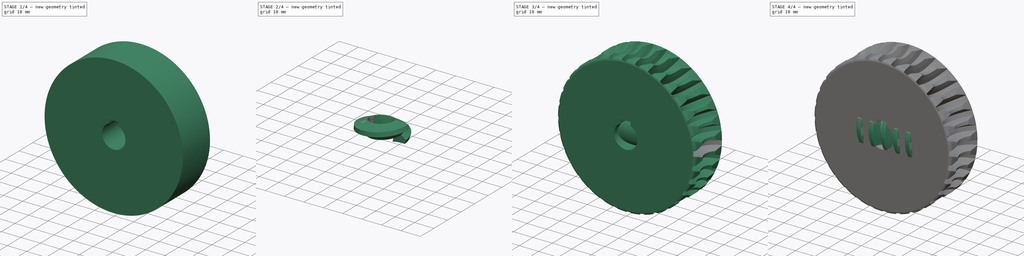
[diagram: build sequence overview — one tinted view per stage of 4, left to right]
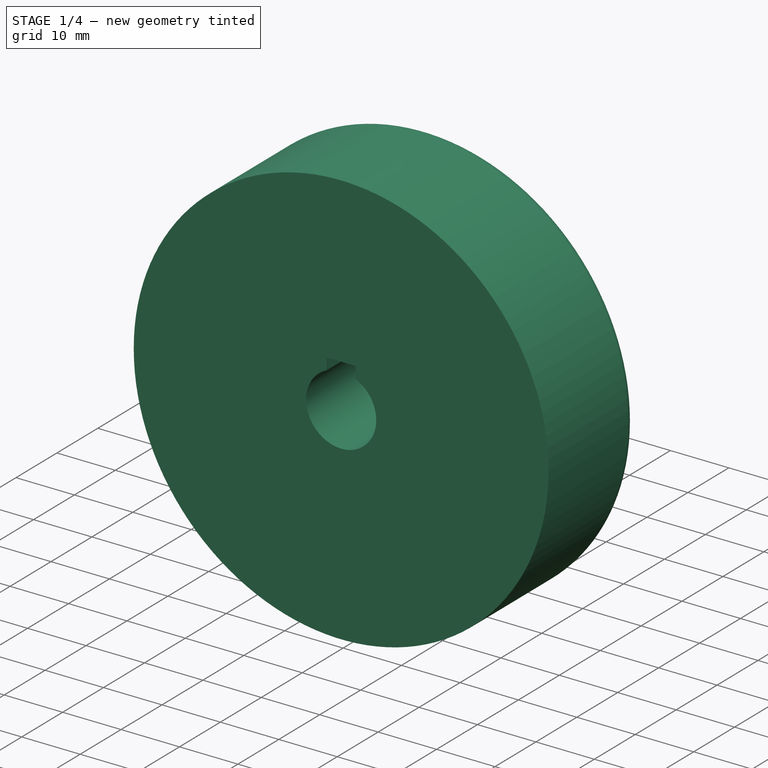
[diagram: stage 1 of 4 — iso view after this stage's code; geometry added in this stage tinted green]
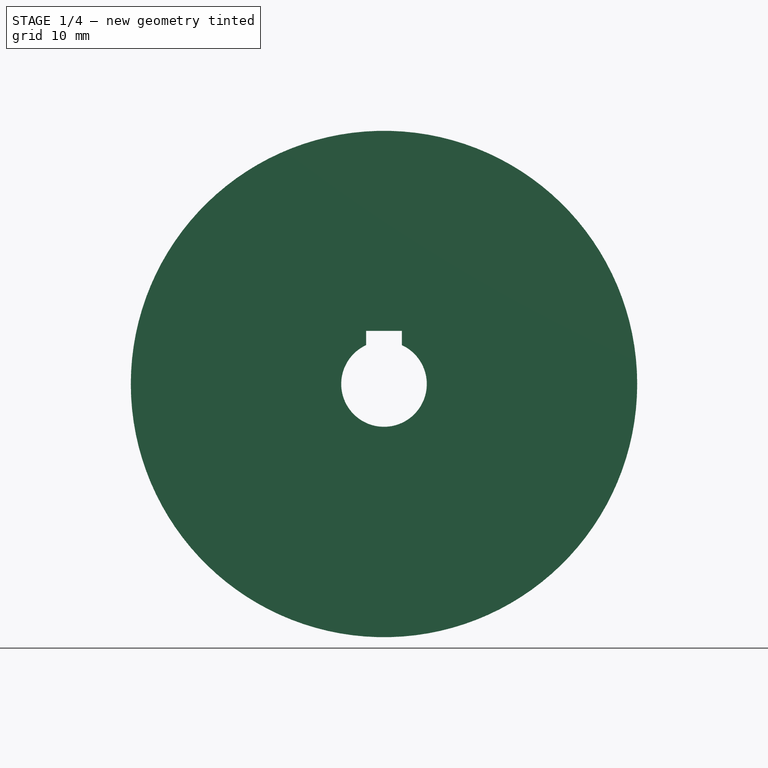
[diagram: stage 1 of 4 — front view after this stage's code; geometry added in this stage tinted green]
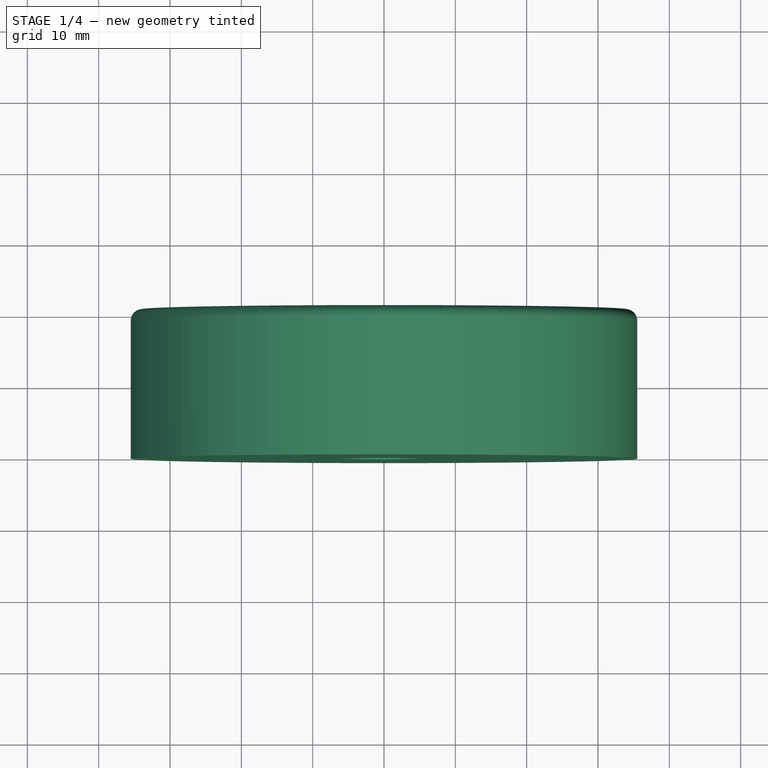
[diagram: stage 1 of 4 — top view after this stage's code; geometry added in this stage tinted green]
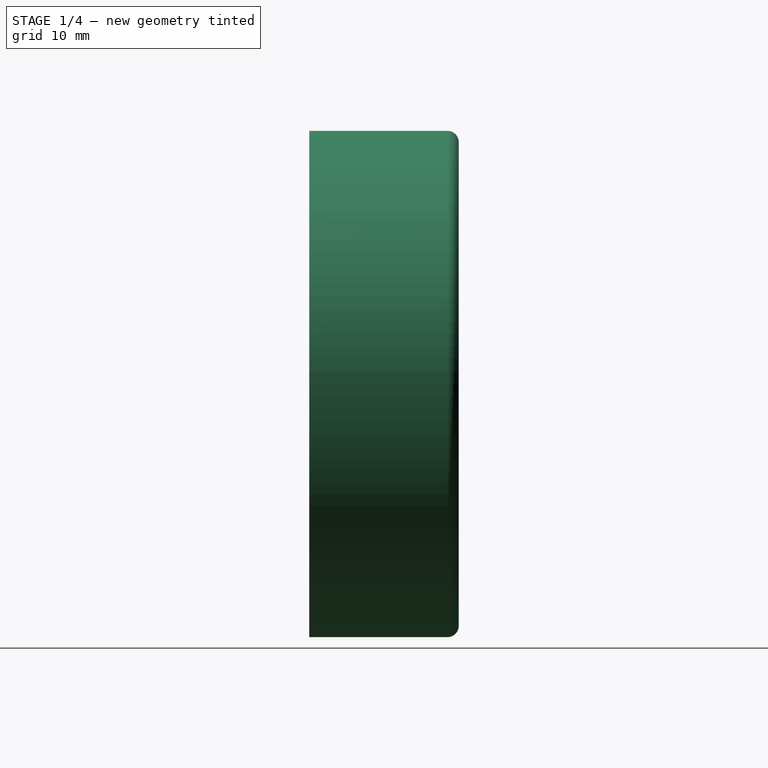
[diagram: stage 1 of 4 — right view after this stage's code; geometry added in this stage tinted green]
FCSTD DOCUMENT  (FreeCAD 0.20R29177 +426 (Git))
Label: Tornillo sin fin
License: All rights reserved
LicenseURL: http://en.wikipedia.org/wiki/All_rights_reserved
objects: Sketcher::SketchObject×5, PartDesign::Pad×2, PartDesign::AdditiveHelix×2, PartDesign::Body×2, PartDesign::Fillet×2, PartDesign::Groove×1, Part::Helix×1, Part::Sweep×1, Part::FeaturePython×1, Part::Cut×1
note: 24 computed .brp shape members not serialized (recipe doc carries the construction recipe); baked Part::Feature solids carry a one-line shape summary decoded from their .brp

FEATURE [PartDesign::Body] Body  label="Tornillo"
  Group = -> [Sketch,Pad,Sketch001,AdditiveHelix,AdditiveHelix001]
  Origin = -> Origin
  Placement = pos=(0,0,-42) rot=(0,0,1;0rad)
  Tip = -> AdditiveHelix001
FEATURE [Sketcher::SketchObject] Sketch002
  FullyConstrained = true
  MapMode = 5
  Placement = pos=(0,0,0) rot=(1,0,0;1.5708rad)
  Support = -> [XZ_Plane001]
  sketch-geometry (5):
    g0: Circle CenterX=0 CenterY=0 CenterZ=0 NormalX=0 NormalY=0 NormalZ=1 AngleXU=0 Radius=35.5
    g1: ArcOfCircle CenterX=0 CenterY=0 CenterZ=0 NormalX=0 NormalY=0 NormalZ=1 AngleXU=0 Radius=6 StartAngle=2.00057 EndAngle=7.42421
    g2: LineSegment StartX=-2.5 StartY=7.45436 StartZ=0 EndX=2.5 EndY=7.45436 EndZ=0
    g3: LineSegment StartX=2.5 StartY=7.45436 StartZ=0 EndX=2.5 EndY=5.45436 EndZ=0
    g4: LineSegment StartX=-2.5 StartY=5.45436 StartZ=0 EndX=-2.5 EndY=7.45436 EndZ=0
  constraints (14):
    c: Coincident(g0,g-1)
    c: Diameter(g0) = 71
    c: Coincident(g1,g0)
    c: Diameter(g1) = 12
    c: Coincident(g2,g3)
    c: Coincident(g4,g2)
    c: Horizontal(g2)
    c: Vertical(g3)
    c: Vertical(g4)
    c: DistanceX(g2,g2) = 5
    c: Equal(g4,g3)
    c: DistanceY(g3,g3) = 2
    c: Coincident(g1,g3)
    c: Coincident(g1,g4)
FEATURE [PartDesign::Pad] Pad001
  Direction = (0,-1,2e-16)
  Length = 20.954
  Length2 = 10
  Midplane = true
  Placement = pos=(0,0,0) rot=(1,0,0;1.5708rad)
  Profile = -> Sketch002
  ReferenceAxis = -> Sketch002 [N_Axis]
  Type = 0
FEATURE [PartDesign::Fillet] Fillet
  Base = -> Pad001 [Edge2]
  BaseFeature = -> Pad001
  Placement = pos=(0,0,0) rot=(1,0,0;1.5708rad)
  Radius = 1.57
  SupportTransform = false
  UseAllEdges = false
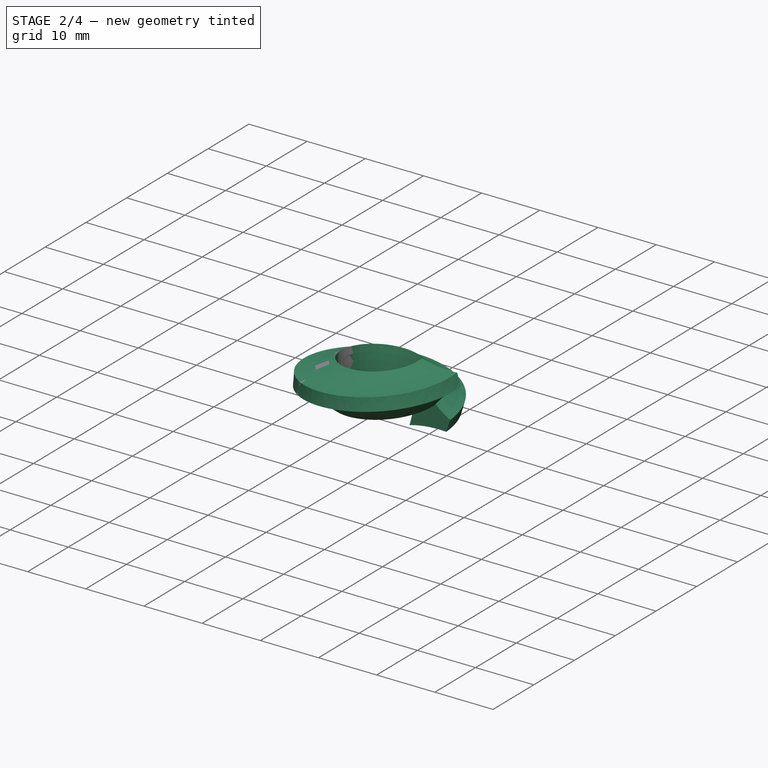
[diagram: stage 2 of 4 — iso view after this stage's code; geometry added in this stage tinted green]
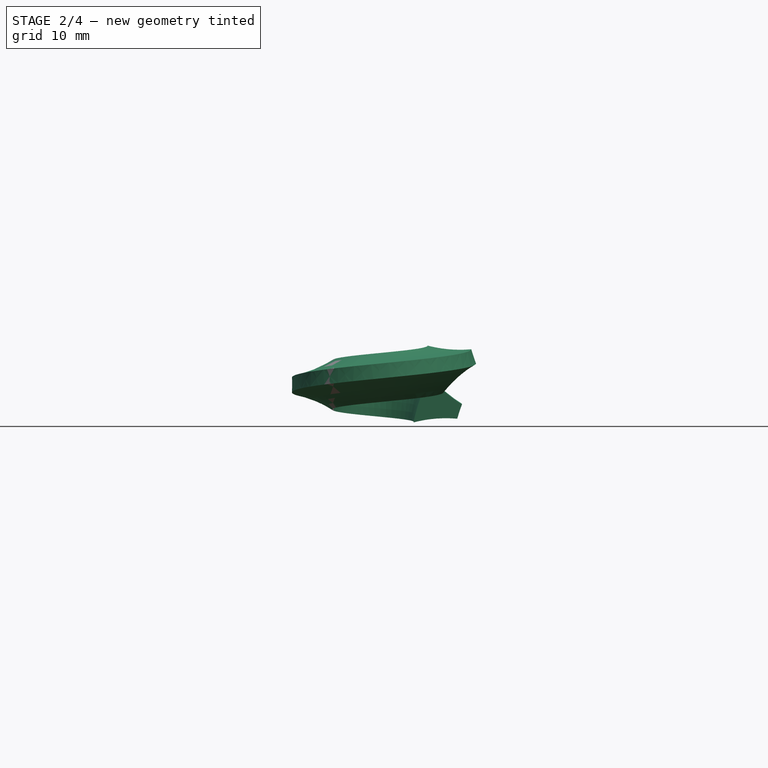
[diagram: stage 2 of 4 — front view after this stage's code; geometry added in this stage tinted green]
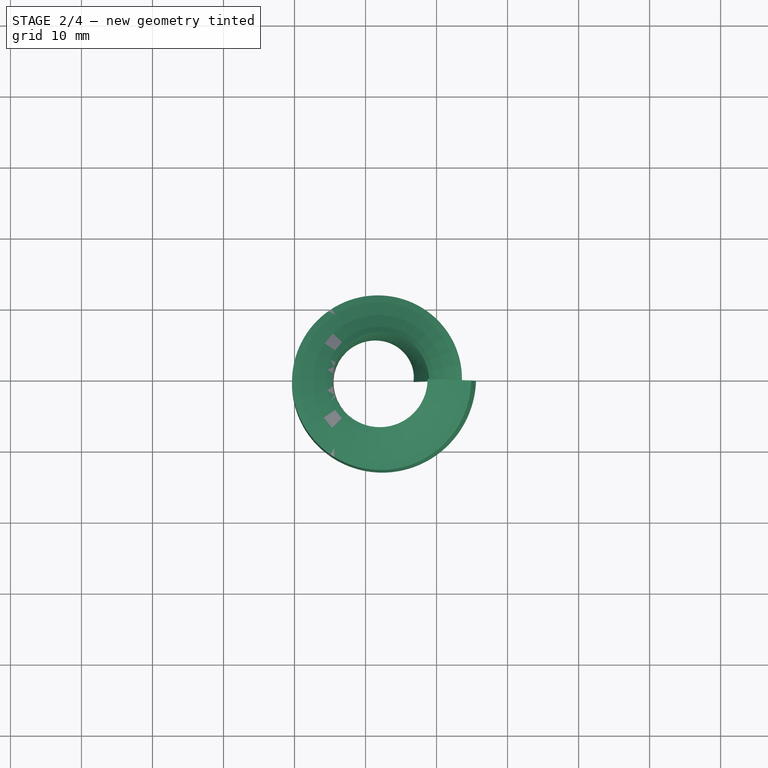
[diagram: stage 2 of 4 — top view after this stage's code; geometry added in this stage tinted green]
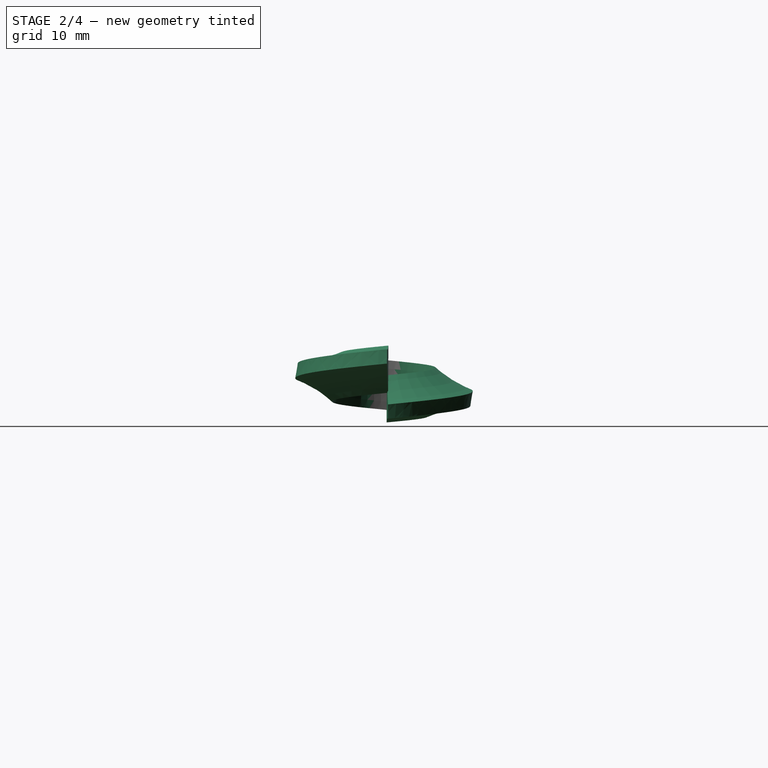
[diagram: stage 2 of 4 — right view after this stage's code; geometry added in this stage tinted green]
FEATURE [PartDesign::Fillet] Fillet001
  Base = -> Fillet [Edge3]
  BaseFeature = -> Fillet
  Placement = pos=(0,0,0) rot=(1,0,0;1.5708rad)
  Radius = 1.57
  SupportTransform = false
  UseAllEdges = false
FEATURE [Sketcher::SketchObject] Sketch003
  FullyConstrained = true
  MapMode = 5
  Support = -> [XY_Plane001]
  sketch-geometry (1):
    g0: Circle CenterX=42 CenterY=0 CenterZ=0 NormalX=0 NormalY=0 NormalZ=1 AngleXU=0 Radius=8
  constraints (3):
    c: PointOnObject(g0,g-1)
    c: Radius(g0) = 8
    c: DistanceX(g-1,g0) = 42
FEATURE [PartDesign::Groove] Groove
  Angle = 360
  Axis = (0,1,0)
  Base = (0,0,0)
  BaseFeature = -> Fillet001
  Placement = pos=(0,0,0) rot=(1,0,0;1.5708rad)
  Profile = -> Sketch003
  ReferenceAxis = -> Sketch003 [V_Axis]
FEATURE [Sketcher::SketchObject] Sketch004
  ExternalGeometry = -> [Groove]
  FullyConstrained = false
  MapMode = 5
  Placement = pos=(0,0,0) rot=(1,0,0;1.5708rad)
  Support = -> [XZ_Plane001]
  sketch-geometry (12):
    g0: Circle CenterX=0 CenterY=7.9e-15 CenterZ=0 NormalX=0 NormalY=0 NormalZ=1 AngleXU=0 Radius=34
    g1: Circle CenterX=0 CenterY=7.9e-15 CenterZ=0 NormalX=0 NormalY=0 NormalZ=1 AngleXU=0 Radius=29.666
    g2: GeomPoint X=34 Y=0 Z=0
    g3: GeomPoint X=29.666 Y=0 Z=0
    g4: LineSegment StartX=0 StartY=7.9e-15 StartZ=0 EndX=78.2626 EndY=2.80137 EndZ=0
    g5: LineSegment StartX=0 StartY=7.9e-15 StartZ=0 EndX=78.2626 EndY=-2.80137 EndZ=0
    g6: ArcOfCircle CenterX=25.4909 CenterY=-18.5748 CenterZ=0 NormalX=0 NormalY=0 NormalZ=1 AngleXU=0 Radius=18 StartAngle=0.992673 EndAngle=1.3378
    g7: ArcOfCircle CenterX=25.4909 CenterY=18.5748 CenterZ=0 NormalX=0 NormalY=0 NormalZ=1 AngleXU=0 Radius=18 StartAngle=4.94539 EndAngle=5.29051
    g8: GeomPoint X=35.327 Y=0 Z=0
    g9: ArcOfCircle CenterX=0 CenterY=7.9e-15 CenterZ=0 NormalX=0 NormalY=0 NormalZ=1 AngleXU=0 Radius=29.666 StartAngle=6.24741 EndAngle=6.31896
    g10: ArcOfCircle CenterX=0 CenterY=7.9e-15 CenterZ=0 NormalX=0 NormalY=0 NormalZ=1 AngleXU=0 Radius=35.5 StartAngle=6.18443 EndAngle=6.38194
    g11: ArcOfCircle CenterX=0 CenterY=7.9e-15 CenterZ=0 NormalX=0 NormalY=0 NormalZ=1 AngleXU=0 Radius=29.666 StartAngle=6.24741 EndAngle=6.31896
  constraints (30):
    c: Coincident(g0,g-3)
    c: Diameter(g0) = 68
    c: Coincident(g1,g0)
    c: PointOnObject(g2,g0)
    c: PointOnObject(g3,g1)
    c: PointOnObject(g3,g-1)
    c: PointOnObject(g2,g-1)
    c: DistanceX(g3,g2) = 4.334
    c: Coincident(g4,g0)
    c: Coincident(g5,g0)
    c: Symmetric(g5,g4,g-1)
    c: Angle(g5,g4) = 0.0715585
    c: PointOnObject(g6,g1)
    c: PointOnObject(g6,g-3)
    c: PointOnObject(g6,g5)
    c: PointOnObject(g7,g-3)
    c: PointOnObject(g7,g4)
    c: PointOnObject(g8,g-1)
    c: DistanceY(g8,g7) = 3.5
    c: Symmetric(g6,g7,g8)
    c: Equal(g6,g7)
    c: Radius(g7) = 18
    c: Coincident(g9,g0)
    c: Coincident(g9,g7)
    c: Coincident(g9,g6)
    c: Coincident(g10,g9)
    c: Coincident(g10,g7)
    c: Coincident(g11,g9)
    c: Coincident(g11,g7)
    c: Coincident(g11,g6)
FEATURE [PartDesign::Body] Body001  label="Corona"
  Group = -> [Sketch002,Pad001,Fillet,Fillet001,Sketch003,Groove,Sketch004]
  Origin = -> Origin001
  Tip = -> Groove
FEATURE [Part::Helix] Helix001  label="Hélice001"
  Angle = 0
  AttacherType = Attacher::AttachEngine3D
  Height = 6.28
  LocalCoord = 0
  Pitch = 6.28
  Placement = pos=(42,0,0) rot=(0,0,1;0rad)
  Radius = 10
  SegmentLength = 0
  Style = 1
FEATURE [Part::Sweep] Sweep
  Frenet = false
  Sections = -> [Sketch004]
  Solid = true
  Spine = -> Helix001 [Edge1]
  Transition = 1
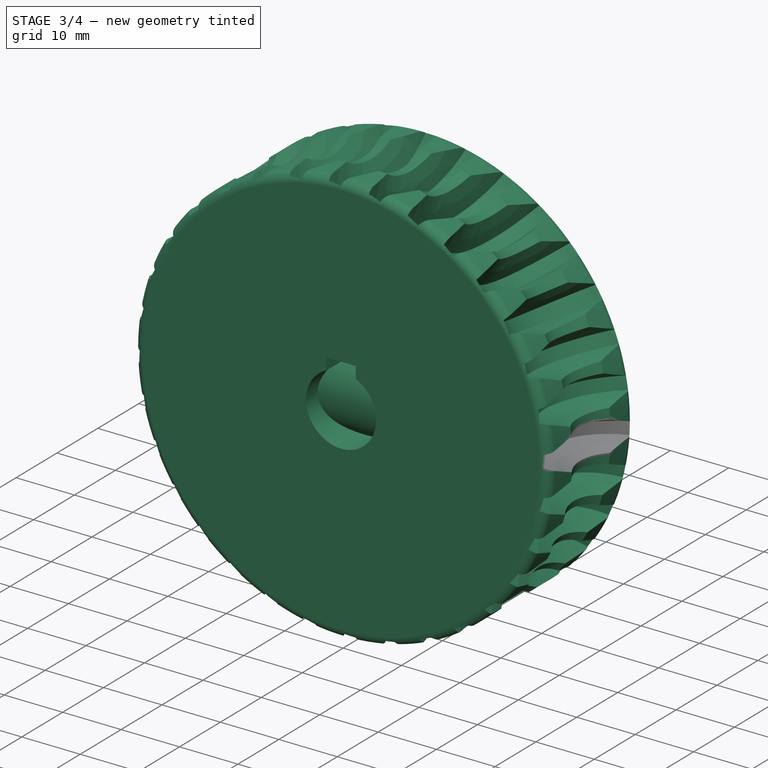
[diagram: stage 3 of 4 — iso view after this stage's code; geometry added in this stage tinted green]
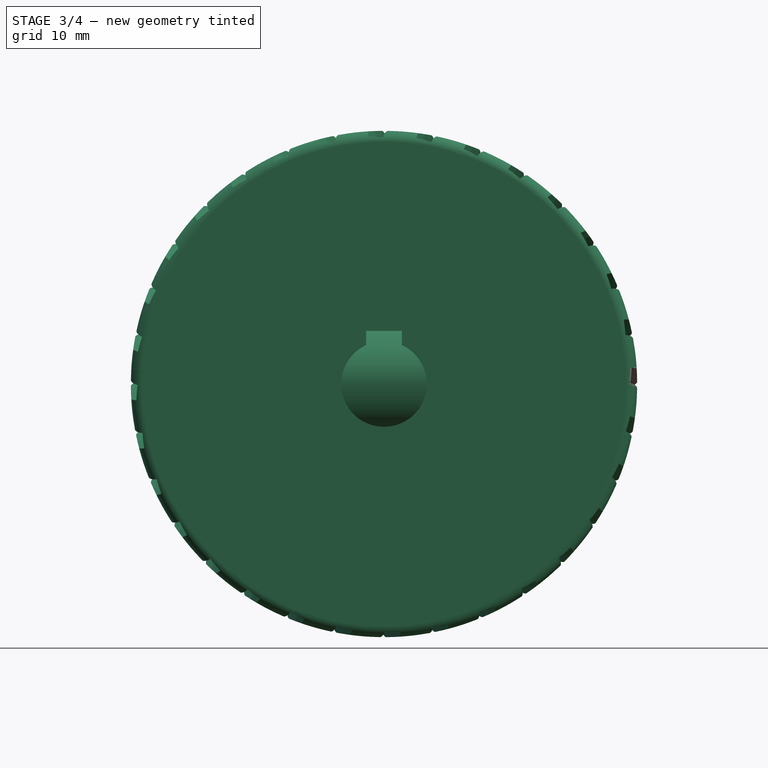
[diagram: stage 3 of 4 — front view after this stage's code; geometry added in this stage tinted green]
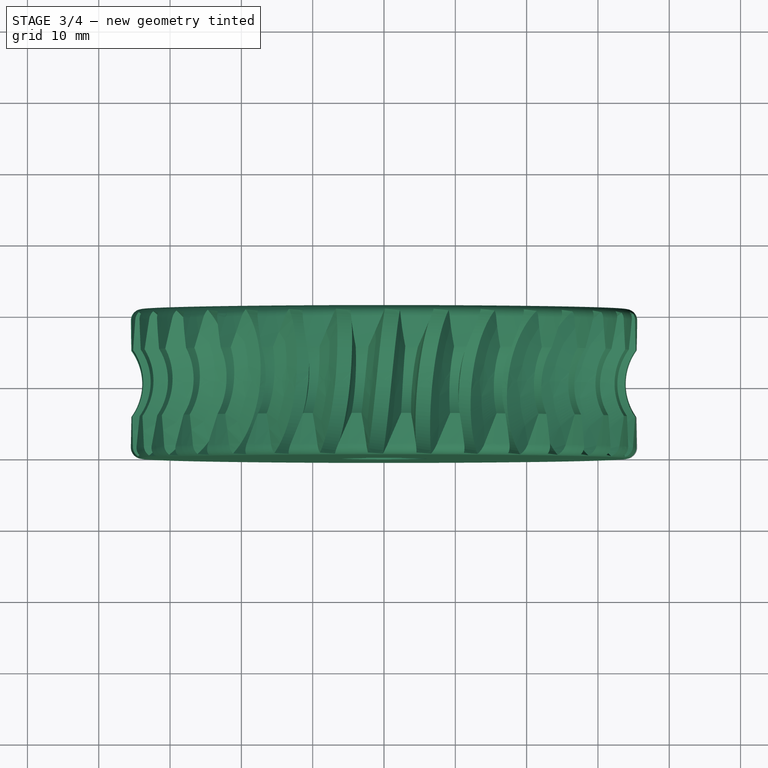
[diagram: stage 3 of 4 — top view after this stage's code; geometry added in this stage tinted green]
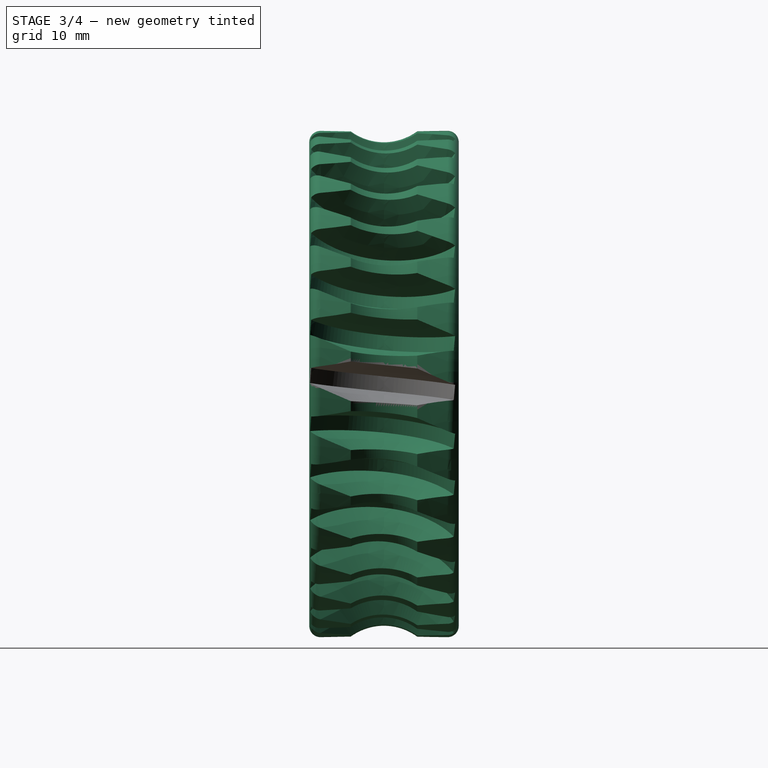
[diagram: stage 3 of 4 — right view after this stage's code; geometry added in this stage tinted green]
FEATURE [Sketcher::SketchObject] Sketch
  FullyConstrained = true
  MapMode = 5
  Placement = pos=(0,0,0) rot=(0.57735,0.57735,0.57735;2.0944rad)
  Support = -> [YZ_Plane]
  sketch-geometry (1):
    g0: Circle CenterX=0 CenterY=0 CenterZ=0 NormalX=0 NormalY=0 NormalZ=1 AngleXU=0 Radius=7.666
  constraints (2):
    c: Coincident(g0,g-1)
    c: Diameter(g0) = 15.332
FEATURE [PartDesign::Pad] Pad
  Direction = (1,-2e-16,3e-16)
  Length = 42.862
  Length2 = 10
  Midplane = true
  Placement = pos=(0,0,0) rot=(0.57735,0.57735,0.57735;2.0944rad)
  Profile = -> Sketch
  ReferenceAxis = -> Sketch [N_Axis]
  Type = 0
FEATURE [Part::FeaturePython] Array  # Draft array (typed FeaturePython)
  AlwaysSyncPlacement = false
  Angle = 360
  ArrayType = 1
  Axis = (0,1,0)
  Base = -> Sweep
  Center = (0,0,0)
  Count = 32
  ExpandArray = false
  Fuse = false
  IntervalAxis = (0,0,0)
  IntervalX = (50,0,0)
  IntervalY = (0,50,0)
  IntervalZ = (0,0,50)
  NumberCircles = 3
  NumberPolar = 32
  NumberX = 2
  NumberY = 2
  NumberZ = 1
  PlacementList = 32 placements: [(0,0,0),(0,0,0),(0,0,0),(0,0,0),(0,0,0),(0,0,0),(0,0,0),(0,0,0),(0,0,0),(0,0,0),(0,0,0),(0,0,0),(0,0,0),(0,0,0),(0,0,0),(0,0,0),(0,0,0),(0,0,0),(0,0,0),(0,0,0),(0,0,0),(0,0,0),(0,0,0),(0,0,0),(0,0,0),(0,0,0),(0,0,0),(0,0,0),(0,0,0),(0,0,0),(0,0,0),(0,0,0)]
  RadialDistance = 50
  ScaleList = (32) [(1,1,1),(1,1,1),(1,1,1),(1,1,1),(1,1,1),(1,1,1),(1,1,1),(1,1,1),(1,1,1),(1,1,1),(1,1,1),(1,1,1),(1,1,1),(1,1,1),(1,1,1),(1,1,1),(1,1,1),(1,1,1),+14 more]
  Symmetry = 1
  TangentialDistance = 25
FEATURE [Part::Cut] Cut
  Base = -> Groove
  Tool = -> Array
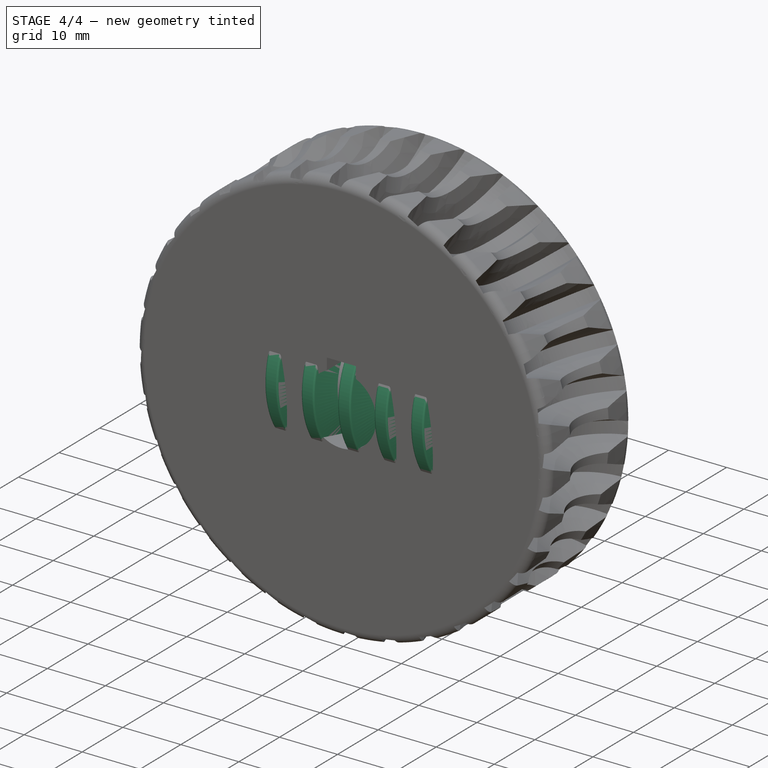
[diagram: stage 4 of 4 — iso view after this stage's code; geometry added in this stage tinted green]
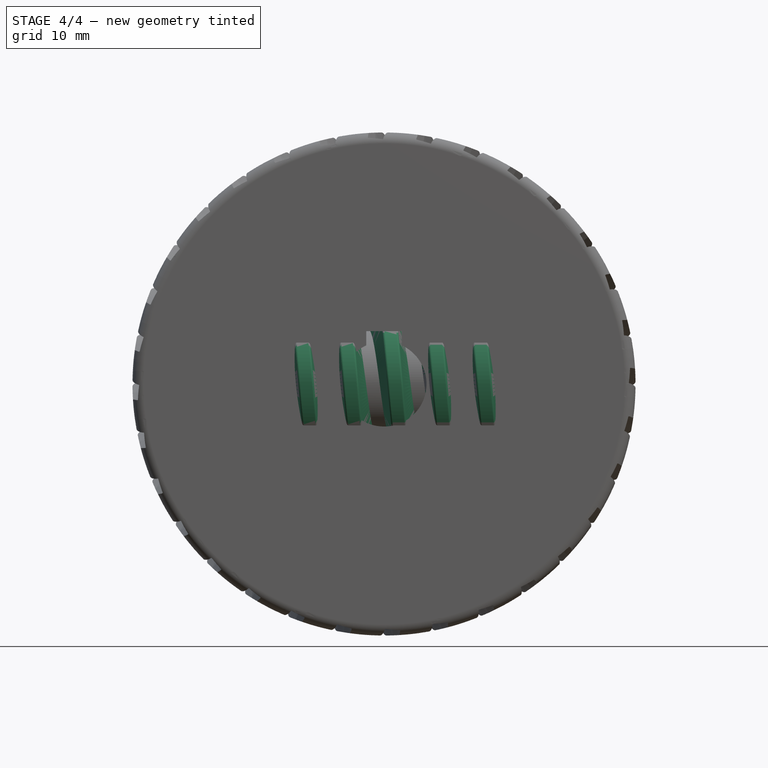
[diagram: stage 4 of 4 — front view after this stage's code; geometry added in this stage tinted green]
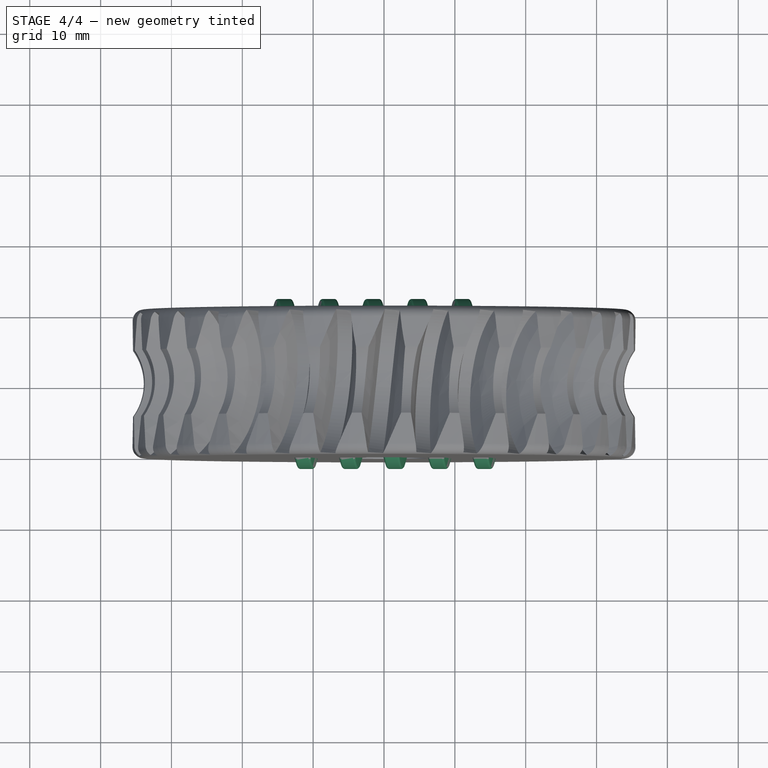
[diagram: stage 4 of 4 — top view after this stage's code; geometry added in this stage tinted green]
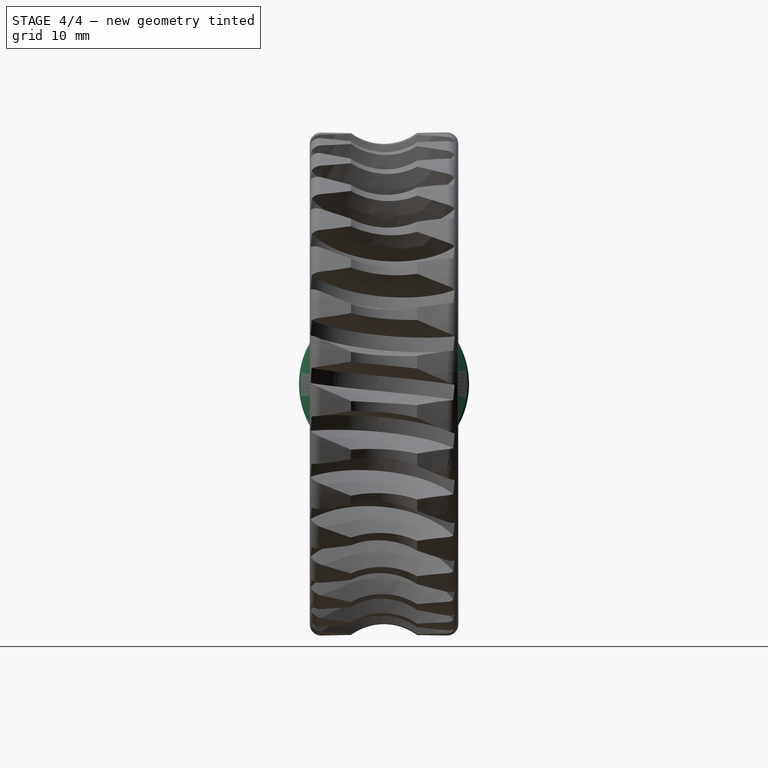
[diagram: stage 4 of 4 — right view after this stage's code; geometry added in this stage tinted green]
FEATURE [Sketcher::SketchObject] Sketch001
  FullyConstrained = false
  MapMode = 5
  Placement = pos=(0,0,0) rot=(1,0,0;1.5708rad)
  Support = -> [XZ_Plane]
  sketch-geometry (14):
    g0: LineSegment StartX=-7.48194 StartY=12 StartZ=0 EndX=9.44757 EndY=12 EndZ=0
    g1: LineSegment StartX=-7.56222 StartY=10 StartZ=0 EndX=9.36728 EndY=10 EndZ=0
    g2: LineSegment StartX=-7.65133 StartY=7.666 StartZ=0 EndX=9.27817 EndY=7.666 EndZ=0
    g3: LineSegment StartX=-2.17441 StartY=7.666 StartZ=0 EndX=-1.11447 EndY=11.7645 EndZ=0
    g4: LineSegment StartX=-0.810313 StartY=12 StartZ=0 EndX=0.810313 EndY=12 EndZ=0
    g5: LineSegment StartX=1.11447 StartY=11.7645 StartZ=0 EndX=2.17441 EndY=7.666 EndZ=0
    g6: LineSegment StartX=2.17441 StartY=7.666 StartZ=0 EndX=2.17441 EndY=7.166 EndZ=0
    g7: LineSegment StartX=2.17441 StartY=7.166 StartZ=0 EndX=-2.17441 EndY=7.166 EndZ=0
    g8: LineSegment StartX=-2.17441 StartY=7.166 StartZ=0 EndX=-2.17441 EndY=7.666 EndZ=0
    g9: GeomPoint X=-1.5708 Y=10 Z=0
    g10: GeomPoint X=1.5708 Y=10 Z=0
    g11: LineSegment StartX=-1.5708 StartY=13.1348 StartZ=0 EndX=-1.5708 EndY=4.84114 EndZ=0
    g12: ArcOfCircle CenterX=-0.810313 CenterY=11.6858 CenterZ=0 NormalX=0 NormalY=0 NormalZ=1 AngleXU=0 Radius=0.314159 StartAngle=1.5708 EndAngle=2.88852
    g13: ArcOfCircle CenterX=0.810313 CenterY=11.6858 CenterZ=0 NormalX=0 NormalY=0 NormalZ=1 AngleXU=0 Radius=0.314159 StartAngle=0.253073 EndAngle=1.5708
  constraints (35):
    c: Horizontal(g0)
    c: Horizontal(g1)
    c: Horizontal(g2)
    c: Equal(g0,g1)
    c: Equal(g1,g2)
    c: DistanceY(g-1,g2) = 7.666
    c: DistanceY(g-1,g1) = 10
    c: DistanceY(g-1,g0) = 12
    c: PointOnObject(g3,g2)
    c: PointOnObject(g5,g2)
    c: Coincident(g5,g6)
    c: Coincident(g6,g7)
    c: Horizontal(g7)
    c: Coincident(g7,g8)
    c: Coincident(g8,g3)
    c: PointOnObject(g9,g3)
    c: PointOnObject(g10,g5)
    c: PointOnObject(g9,g1)
    c: Symmetric(g9,g10,g-2)
    c: Equal(g3,g5)
    c: Vertical(g6)
    c: DistanceX(g9,g10) = 3.14159
    c: Vertical(g8)
    c: Vertical(g11)
    c: PointOnObject(g9,g11)
    c: Angle(g3,g11) = 0.253073
    c: Tangent(g3,g12) = 1.5708
    c: Tangent(g4,g12) = 1.5708
    c: Radius(g12) = 0.314159
    c: Tangent(g4,g13) = 1.5708
    c: Tangent(g5,g13) = 1.5708
    c: PointOnObject(g4,g0)
    c: PointOnObject(g4,g0)
    c: Radius(g13) = 0.314159
    c: DistanceY(g6,g6) = 0.5
FEATURE [PartDesign::AdditiveHelix] AdditiveHelix
  Angle = 0
  Axis = (1,0,0)
  Base = (0,0,0)
  BaseFeature = -> Pad
  Growth = 0
  HasBeenEdited = true
  Height = 16.1478
  LeftHanded = false
  Mode = 0
  Outside = false
  Pitch = 6.28318
  Placement = pos=(0,0,0) rot=(0.57735,0.57735,0.57735;2.0944rad)
  Profile = -> Sketch001
  ReferenceAxis = -> Sketch001 [H_Axis]
  Turns = 2.57
FEATURE [PartDesign::AdditiveHelix] AdditiveHelix001
  Angle = 0
  Axis = (1,0,0)
  Base = (0,0,0)
  BaseFeature = -> AdditiveHelix
  Growth = 0
  HasBeenEdited = true
  Height = 16.15
  LeftHanded = false
  Mode = 0
  Outside = false
  Pitch = 6.28
  Placement = pos=(0,0,0) rot=(0.57735,0.57735,0.57735;2.0944rad)
  Profile = -> Sketch001
  ReferenceAxis = -> Sketch001 [H_Axis]
  Reversed = true
  Turns = 2.57166
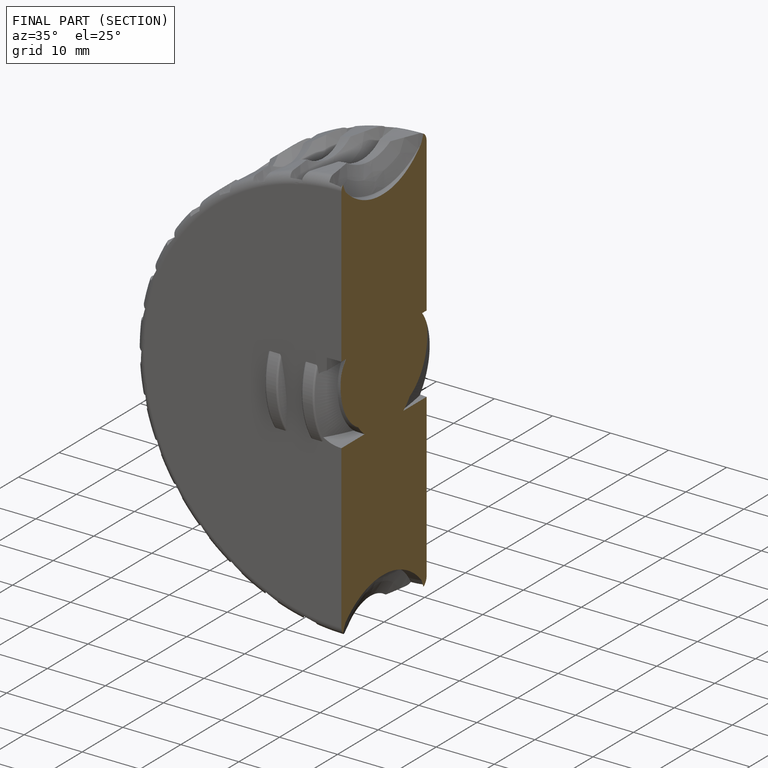
[diagram: finished part — half-section view (interior)]
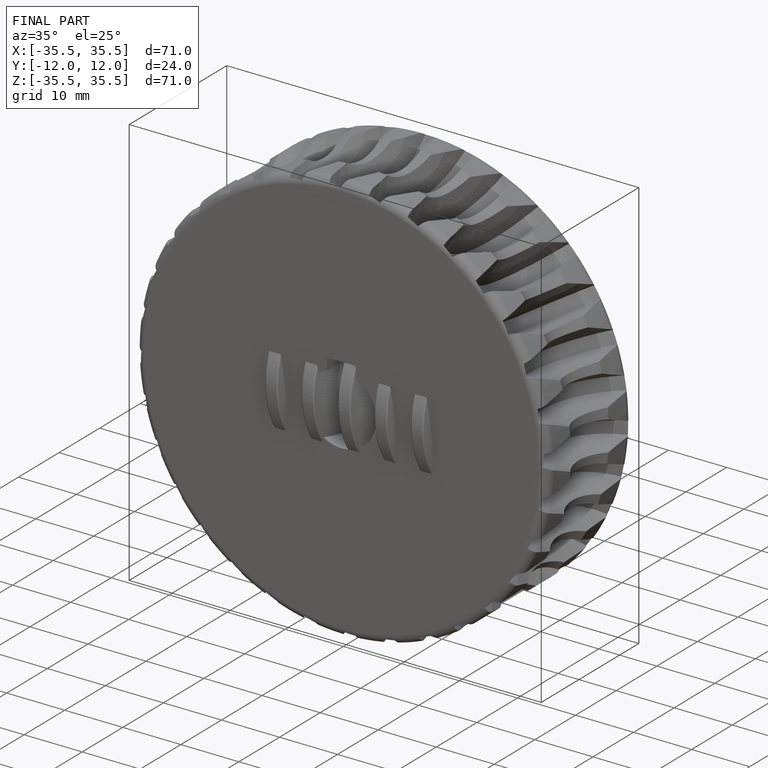
[diagram: finished part — iso view with bounding-box wireframe]
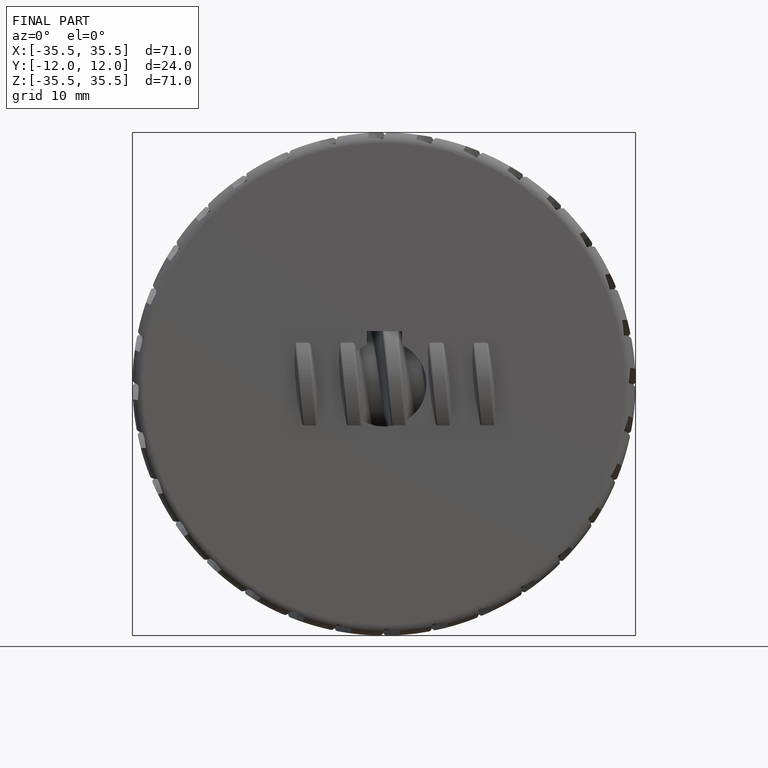
[diagram: finished part — front view with bounding-box wireframe]
